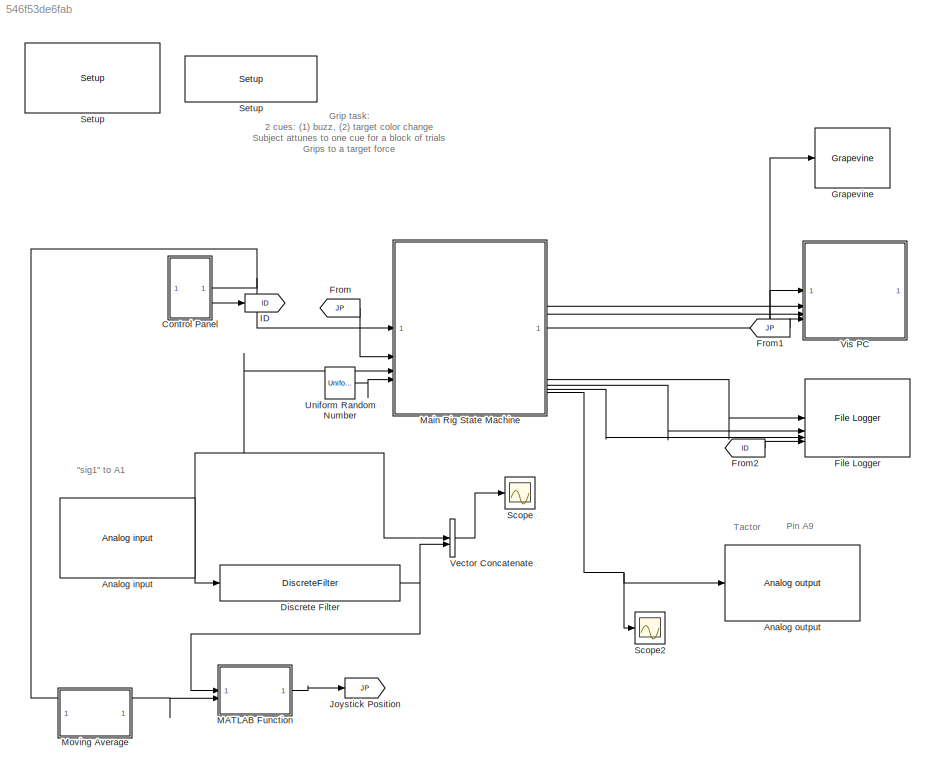
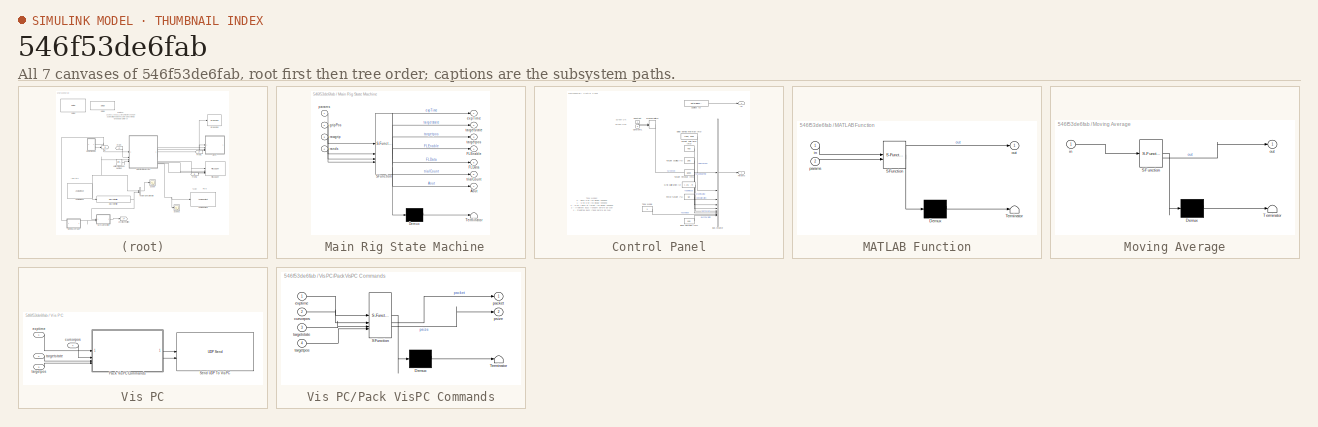
[diagram: thumbnail index - all 7 canvases of the model, root first then tree order]
MODEL slx_546f53de6fab
KIND model
CONFIG AbsTol = auto
CONFIG EnableMultiTasking = on
CONFIG FixedStep = 0.001
CONFIG InitFcn = parambus = Simulink.Bus;\nidx = 0;\n\nidx = idx + 1;\nparambus.Elements(idx) = Simulink.BusElement;\nparambus.Elements(idx).Name = 'ScreenOn';\nparambus.Elements(idx).DataType = 'uint8';\nparambus.Elements(idx).Dimensions = [1, 1];\n\nidx = idx + 1;\nparambus.Elements(idx) = Simulink.BusElement;\nparambus.Elements(idx).Name = 'DelayPeriod';\nparambus.Elements(idx).DataType = 'uint16';\nparambus.Elements(idx).D...<+2402ch>
CONFIG MaxStep = auto
CONFIG MinStep = auto
CONFIG RelTol = 1e-3
CONFIG SampleTimeConstraint = Unconstrained
CONFIG SolverName = FixedStepDiscrete
CONFIG StartTime = 0.0
CONFIG StopTime = Inf
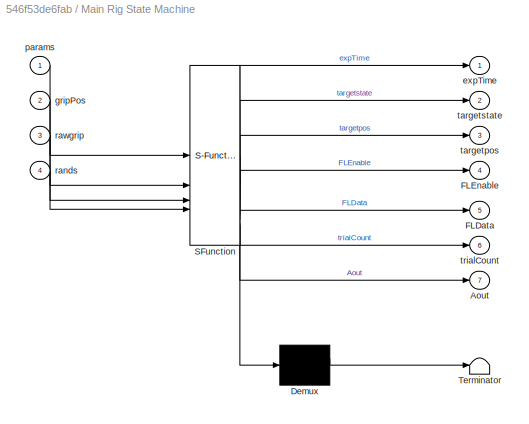
BLOCK [SubSystem]  Main Rig State Machine
  ErrorFcn = Stateflow.Translate.translate
  LibrarySourceBlock = simulink/User-Defined\nFunctions/MATLAB Function
  PermitHierarchicalResolution = ExplicitOnly
  SFBlockType = MATLAB Function
  TreatAsAtomicUnit = on
BLOCK [Demux]  Main Rig State Machine/ Demux 
  Outputs = 1
BLOCK [S-Function]  Main Rig State Machine/ SFunction 
  EnableBusSupport = on
  FunctionName = sf_sfun
  PortCounts = [4 8]
  SFcnIsStateOwnerBlock = off
  SFunctionDeploymentMode = off
  Tag = Stateflow S-Function 2
BLOCK [Terminator]  Main Rig State Machine/ Terminator 
BLOCK [Outport]  Main Rig State Machine/Aout
  Port = 7
BLOCK [Outport]  Main Rig State Machine/FLData
  Port = 5
BLOCK [Outport]  Main Rig State Machine/FLEnable
  Port = 4
BLOCK [Outport]  Main Rig State Machine/expTime
BLOCK [Inport]  Main Rig State Machine/gripPos
  Port = 2
BLOCK [Inport]  Main Rig State Machine/params
BLOCK [Inport]  Main Rig State Machine/rands
  Port = 4
BLOCK [Inport]  Main Rig State Machine/rawgrip
  Port = 3
BLOCK [Outport]  Main Rig State Machine/targetpos
  Port = 3
BLOCK [Outport]  Main Rig State Machine/targetstate
  Port = 2
BLOCK [Outport]  Main Rig State Machine/trialCount
  Port = 6
BLOCK [Reference] Analog input   REF=speedgoatlib_IO191/Analog input 
  SourceBlock = speedgoatlib_IO191/Analog input
  SourceProductName = Simulink Real-Time: Speedgoat I/O Blockset
  SourceType = ad_IO191
BLOCK [Reference] Analog output   REF=speedgoatlib_IO191/Analog output 
  SourceBlock = speedgoatlib_IO191/Analog output
  SourceProductName = Simulink Real-Time: Speedgoat I/O Blockset
  SourceType = da_IO191
BLOCK [SubSystem] Control Panel
BLOCK [BusCreator] Control Panel/Bus Creator
  DisplayOption = bar
  InheritFromInputs = off
  Inputs = 9
  NonVirtualBus = on
  OutDataTypeStr = Bus: parambus
BLOCK [Constant] Control Panel/Buzz Duration (ms)
  OutDataTypeStr = uint16
  Value = 100
BLOCK [Constant] Control Panel/Constant
  OutDataTypeStr = uint8
BLOCK [Constant] Control Panel/Constant1
  OutDataTypeStr = uint8
  Value = 0
BLOCK [Constant] Control Panel/Delay period min//max (ms)
  OutDataTypeStr = uint16
  Value = [300, 500]
BLOCK [Constant] Control Panel/Force target (%)
  OutDataTypeStr = single
  Value = 50
BLOCK [Constant] Control Panel/Grip calibration (V)
  OutDataTypeStr = single
  Value = [.14, .7]
BLOCK [Outport] Control Panel/ID
  Port = 2
BLOCK [ManualSwitch] Control Panel/Manual Switch
  CurrentSetting = 0
BLOCK [Outport] Control Panel/Params
BLOCK [Constant] Control Panel/Subject ID
  OutDataTypeStr = uint8
  Value = uint8('BB038')
BLOCK [Constant] Control Panel/Target hold time (ms)
  OutDataTypeStr = uint16
  Value = 750
BLOCK [Constant] Control Panel/Target scaling (%)
  OutDataTypeStr = uint16
  Value = 255
BLOCK [Constant] Control Panel/Target timeout (ms)
  OutDataTypeStr = uint16
  Value = 5000
BLOCK [Constant] Control Panel/Task Mode
  OutDataTypeStr = uint8
BLOCK [DiscreteFilter] Discrete Filter
  Denominator = [1, -1.9778, .978]
  InputPortMap = u0
  Numerator = [.061e-3, .122e-3, .061e-3]
BLOCK [Reference] File Logger  REF=Lab_Library/File Logger
  SourceBlock = Lab_Library/File Logger
  SourceType = SubSystem
BLOCK [From] From
  GotoTag = JP
BLOCK [From] From1
  GotoTag = JP
BLOCK [From] From2
  GotoTag = ID
BLOCK [Reference] Grapevine  REF=Lab_Library/Grapevine
  SourceBlock = Lab_Library/Grapevine
  SourceType = SubSystem
BLOCK [Goto] ID
  GotoTag = ID
BLOCK [Goto] Joystick Position
  GotoTag = JP
BLOCK [SubSystem] MATLAB Function
  ErrorFcn = Stateflow.Translate.translate
  LibrarySourceBlock = simulink/User-Defined\nFunctions/MATLAB Function
  PermitHierarchicalResolution = ExplicitOnly
  SFBlockType = MATLAB Function
  TreatAsAtomicUnit = on
BLOCK [Demux] MATLAB Function/ Demux 
  Outputs = 1
BLOCK [S-Function] MATLAB Function/ SFunction 
  EnableBusSupport = on
  FunctionName = sf_sfun
  PortCounts = [2 2]
  SFcnIsStateOwnerBlock = off
  SFunctionDeploymentMode = off
  Tag = Stateflow S-Function 4
BLOCK [Terminator] MATLAB Function/ Terminator 
BLOCK [Inport] MATLAB Function/in
BLOCK [Outport] MATLAB Function/out
BLOCK [Inport] MATLAB Function/params
  Port = 2
BLOCK [SubSystem] Moving Average
  Commented = on
  ErrorFcn = Stateflow.Translate.translate
  LibrarySourceBlock = simulink/User-Defined\nFunctions/MATLAB Function
  PermitHierarchicalResolution = ExplicitOnly
  SFBlockType = MATLAB Function
  TreatAsAtomicUnit = on
BLOCK [Demux] Moving Average/ Demux 
  Outputs = 1
BLOCK [S-Function] Moving Average/ SFunction 
  EnableBusSupport = on
  FunctionName = sf_sfun
  PortCounts = [1 2]
  SFcnIsStateOwnerBlock = off
  SFunctionDeploymentMode = off
  Tag = Stateflow S-Function 3
BLOCK [Terminator] Moving Average/ Terminator 
BLOCK [Inport] Moving Average/in
BLOCK [Outport] Moving Average/out
BLOCK [Scope] Scope
  Floating = off
  NumInputPorts = 1
  ScopeSpecificationString = Simulink.scopes.TimeScopeBlockCfg('CurrentConfiguration', extmgr.ConfigurationSet(extmgr.Configuration('Core','General UI',true),extmgr.Configuration('Core','Source UI',true),extmgr.Configuration('Sources','WiredSimulink',true),extmgr.Configuration('Visuals','Time Domain',true,'SerializedDisplays',{struct('MinYLimReal','0.01957','MaxYLimReal','0.91762','YLabelReal','','MinYLimMag','0.01957','MaxYL...<+1797ch>
BLOCK [Scope] Scope2
  Floating = off
  NumInputPorts = 1
  ScopeSpecificationString = Simulink.scopes.TimeScopeBlockCfg('CurrentConfiguration', extmgr.ConfigurationSet(extmgr.Configuration('Core','General UI',true),extmgr.Configuration('Core','Source UI',true),extmgr.Configuration('Sources','WiredSimulink',true,'DataLoggingVariableName','ScopeData2'),extmgr.Configuration('Visuals','Time Domain',true,'SerializedDisplays',{struct('MinYLimReal','-1.00000','MaxYLimReal','1.00000','YLab...<+1457ch>
BLOCK [Reference] Setup  REF=slrealtimeseriallib/Mainboard/Setup
  SourceBlock = slrealtimeseriallib/Mainboard/Setup
  SourceType = Setup
BLOCK [Reference] Setup   REF=speedgoatlib_IO191/Setup 
  SourceBlock = speedgoatlib_IO191/Setup
  SourceProductName = Simulink Real-Time: Speedgoat I/O Blockset
  SourceType = setup_IO191
BLOCK [UniformRandomNumber] Uniform Random Number
  Maximum = [2, 2, 2, 1]
  Minimum = [0, 0, 0, 0]
  SampleTime = .001
  Seed = [0, 64, 71, 6]
BLOCK [Concatenate] Vector Concatenate
BLOCK [SubSystem] Vis PC
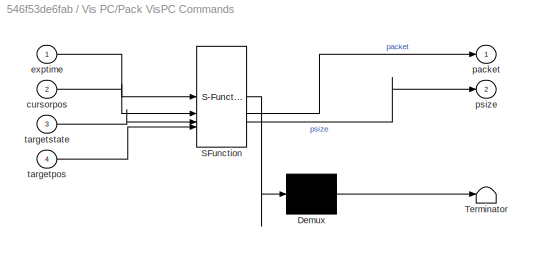
BLOCK [SubSystem] Vis PC/Pack VisPC Commands
  ErrorFcn = Stateflow.Translate.translate
  LibrarySourceBlock = simulink/User-Defined\nFunctions/MATLAB Function
  PermitHierarchicalResolution = ExplicitOnly
  SFBlockType = MATLAB Function
  TreatAsAtomicUnit = on
BLOCK [Demux] Vis PC/Pack VisPC Commands/ Demux 
  Outputs = 1
BLOCK [S-Function] Vis PC/Pack VisPC Commands/ SFunction 
  EnableBusSupport = on
  FunctionName = sf_sfun
  PortCounts = [4 3]
  SFcnIsStateOwnerBlock = off
  SFunctionDeploymentMode = off
  Tag = Stateflow S-Function 1
BLOCK [Terminator] Vis PC/Pack VisPC Commands/ Terminator 
BLOCK [Inport] Vis PC/Pack VisPC Commands/cursorpos
  Port = 2
BLOCK [Inport] Vis PC/Pack VisPC Commands/exptime
BLOCK [Outport] Vis PC/Pack VisPC Commands/packet
BLOCK [Outport] Vis PC/Pack VisPC Commands/psize
  Port = 2
BLOCK [Inport] Vis PC/Pack VisPC Commands/targetpos
  Port = 4
BLOCK [Inport] Vis PC/Pack VisPC Commands/targetstate
  Port = 3
BLOCK [Reference] Vis PC/Send UDP To VisPC  REF=slrealtimeiplib/UDP Send
  SourceBlock = slrealtimeiplib/UDP Send
  SourceType = slrealtimeudpsend
BLOCK [Inport] Vis PC/cursorpos
  Port = 4
BLOCK [Inport] Vis PC/exptime
BLOCK [Inport] Vis PC/targetpos
  Port = 3
BLOCK [Inport] Vis PC/targetstate
  Port = 2
ANNOTATION (root): "sig1" to A1
ANNOTATION (root): Grip task: 2 cues: (1) buzz, (2) target color change Subject attunes to one cue for a block of trials Grips to a target force
ANNOTATION (root): Pin A9
ANNOTATION (root): Tactor
ANNOTATION Control Panel: Task Modes: 0 - Buzz Only (no display needed) 1 - Grip Only (no display needed) 2 - Grip + Buzz at target (no display needed) 3 - Irrelevant Buzz (random before go cue) 4 - Predictive Buzz (fixed before go cue) 5 - Relevant Buzz (buzz is go cue)
ANNOTATION Control Panel: Screen OFF
ANNOTATION Control Panel: Screen ON
NET  Main Rig State Machine:1 -> Grapevine:1, Vis PC:1
LINE  Main Rig State Machine:2 -> Vis PC:2
LINE  Main Rig State Machine:3 -> Vis PC:3
LINE  Main Rig State Machine:4 -> File Logger:1
LINE  Main Rig State Machine:5 -> File Logger:2
LINE  Main Rig State Machine:6 -> File Logger:3
NET  Main Rig State Machine:7 -> Analog output :1, Scope2:1
NET Analog input :1 ->  Main Rig State Machine:3, Discrete Filter:1, Vector Concatenate:1
LINE Control Panel/Bus Creator:1 -> Control Panel/Params:1
LINE Control Panel/Buzz Duration (ms):1 -> Control Panel/Bus Creator:9
LINE Control Panel/Constant1:1 -> Control Panel/Manual Switch:2
LINE Control Panel/Constant:1 -> Control Panel/Manual Switch:1
LINE Control Panel/Delay period min//max (ms):1 -> Control Panel/Bus Creator:2
LINE Control Panel/Force target (%):1 -> Control Panel/Bus Creator:7
LINE Control Panel/Grip calibration (V):1 -> Control Panel/Bus Creator:6
LINE Control Panel/Manual Switch:1 -> Control Panel/Bus Creator:1
LINE Control Panel/Subject ID:1 -> Control Panel/ID:1
LINE Control Panel/Target hold time (ms):1 -> Control Panel/Bus Creator:3
LINE Control Panel/Target scaling (%):1 -> Control Panel/Bus Creator:4
LINE Control Panel/Target timeout (ms):1 -> Control Panel/Bus Creator:5
LINE Control Panel/Task Mode:1 -> Control Panel/Bus Creator:8
NET Control Panel:1 ->  Main Rig State Machine:1, MATLAB Function:2
LINE Control Panel:2 -> ID:1
NET Discrete Filter:1 -> MATLAB Function:1, Vector Concatenate:2
LINE From1:1 -> Vis PC:4
LINE From2:1 -> File Logger:4
LINE From:1 ->  Main Rig State Machine:2
LINE MATLAB Function:1 -> Joystick Position:1
LINE Uniform Random Number:1 ->  Main Rig State Machine:4
LINE Vector Concatenate:1 -> Scope:1
LINE Vis PC/Pack VisPC Commands:1 -> Vis PC/Send UDP To VisPC:1
LINE Vis PC/Pack VisPC Commands:2 -> Vis PC/Send UDP To VisPC:2
LINE Vis PC/cursorpos:1 -> Vis PC/Pack VisPC Commands:2
LINE Vis PC/exptime:1 -> Vis PC/Pack VisPC Commands:1
LINE Vis PC/targetpos:1 -> Vis PC/Pack VisPC Commands:4
LINE Vis PC/targetstate:1 -> Vis PC/Pack VisPC Commands:3
note: NET lines group one-source signal fan-out (src -> all destinations, sorted); 1:1 wires keep LINE
CHART Vis PC/Pack VisPC Commands states=1 transitions=1
  STATE_LABEL 'eML_blk_kernel()'
  STATE_LABEL 'SCRIPT:\n%\n% targetstate [4 x 3]: state of each target (home, narrow, wide)\n%   * Row 1: Target visibility\n%   * Row 2: Target hit indicators\n%   * Row 3: Target sizes\n%   * Row 4: Target fill indicator\n\n% targetpos [3 x 2]: x/y position of each target (home, narrow, wide)\n%   * Col 1: Left position\n%   * Col 2: Top position\n\nfunction [packet, psize] = CreateVisPacket(exptime, cursorpos, targetstat...<+2676ch>'
CHART  Main Rig State Machine states=1 transitions=1
  STATE_LABEL 'eML_blk_kernel()'
  STATE_LABEL 'SCRIPT:\nfunction [expTime, targetstate, targetpos, FLEnable, FLData, trialCount, Aout] = TaskControl(params, gripPos, rawgrip, rands)\n\npersistent exp_state trial_state exp_time trial_time trial_count intparams extparams...\n           targpos prev_time FLStruct\n\nif (isempty(exp_state))\n    exp_state = uint8(0);           % Experiment state variable\n    trial_state = uint8(0);         % Trial state ...<+3608ch>'
CHART Moving Average states=1 transitions=1
  STATE_LABEL 'eML_blk_kernel()'
  STATE_LABEL 'SCRIPT:\nfunction out = FilterAndScale(in)\n\npersistent buffer idx\n\nif (isempty(buffer))\n    buffer = zeros(1,20);\n    idx = 0;\nend\n\nidx = 1+mod(idx, length(buffer)-1);\nbuffer(idx) = in;\n\ntemp = (mean(buffer) - .1)/1;\nif (temp > 1)\n    temp = 1;\nelseif (temp < 0)\n    temp = 0;\nend\n\nout = uint16(900 - 900*temp); % output: 0 force = 900/bottom of screen\n                              %         full for...<+21ch>'
CHART MATLAB Function states=1 transitions=1
  STATE_LABEL 'eML_blk_kernel()'
  STATE_LABEL 'SCRIPT:\nfunction out = FilterAndScale(in, params)\n\nminval = double(params.GripCalibration(1));\nmaxval = double(params.GripCalibration(2));\ntarg = double(params.GripTarget/100);\n\ntemp = (in - minval)/((maxval-minval)*targ);\nif (temp > 1)\n    temp = 1;\nelseif (temp < 0)\n    temp = 0;\nend\n\nout = uint16(900 - 900*temp); % output: 0 force = 900/bottom of screen\n                              %         f...<+28ch>'
CHART  states=0 transitions=0
CHART  states=0 transitions=0
CHART  states=0 transitions=0
CHART  states=0 transitions=0
